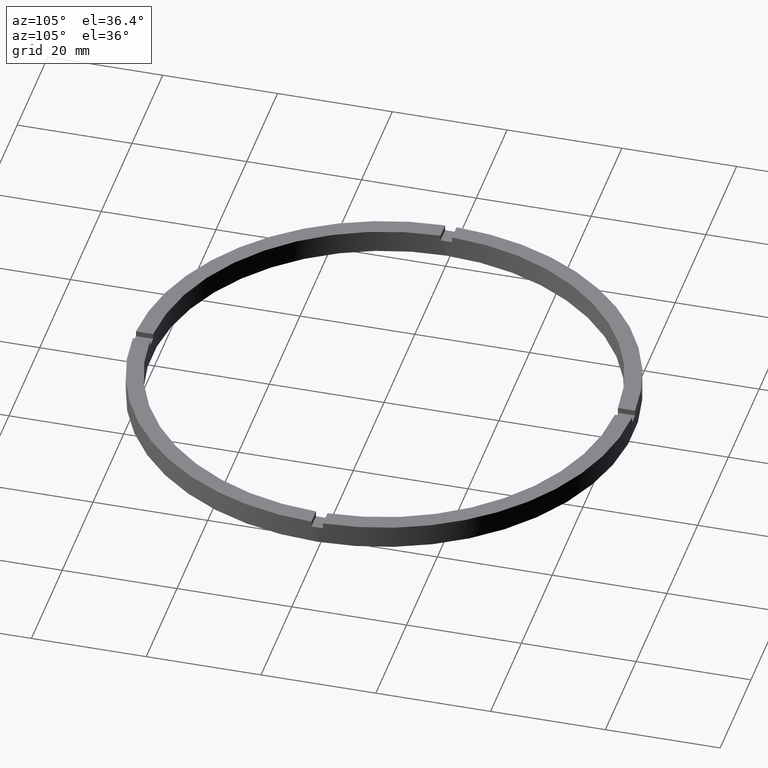
[diagram: clean part render]
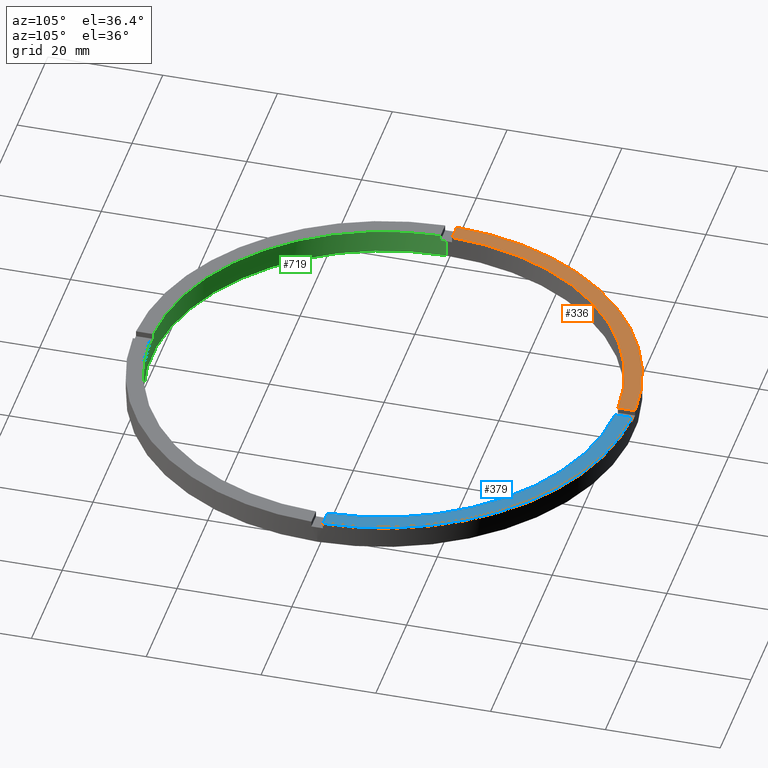
[diagram: same view with three faces highlighted in distinct colors, each labeled with its STEP entity id]
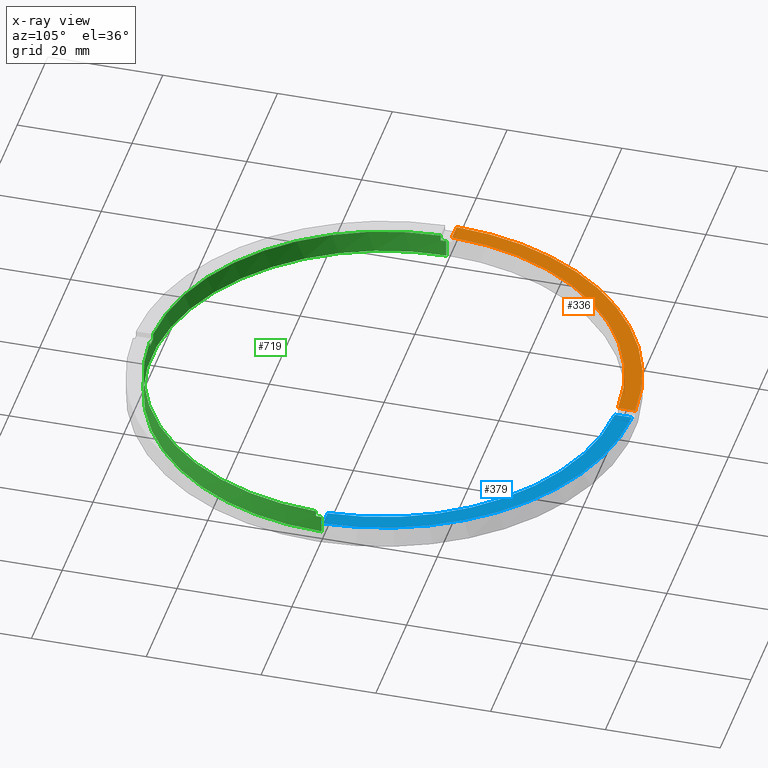
[diagram: x-ray of the same camera — body ghosted, the three highlighted faces saturated]
A machine part, auxiliary view with three faces highlighted in distinct colors.
The next image is the same camera in x-ray (body ghosted, the three faces saturated) — at least one of them is partly hidden behind the body in this view.
Their STEP definitions:

[orange] entity #336 — the highlighted planar face has unit normal (0, 0, 1).
#2 = VERTEX_POINT ( 'NONE', #388 ) ;
#29 = ORIENTED_EDGE ( 'NONE', *, *, #283, .T. ) ;
#80 = VECTOR ( 'NONE', #702, 1000.000000000000000 ) ;
#106 = CARTESIAN_POINT ( 'NONE',  ( -1.000000000000025979, 43.48850422812906658, 4.000000000000000000 ) ) ;
#113 = CARTESIAN_POINT ( 'NONE',  ( -40.48765243873742037, 0.9999999999999711342, 4.000000000000000000 ) ) ;
#118 = DIRECTION ( 'NONE',  ( 1.000000000000000000, 0.000000000000000000, -0.000000000000000000 ) ) ;
#125 = DIRECTION ( 'NONE',  ( 1.000000000000000000, 0.000000000000000000, 0.000000000000000000 ) ) ;
#127 = AXIS2_PLACEMENT_3D ( 'NONE', #779, #289, #118 ) ;
#128 = PLANE ( 'NONE',  #127 ) ;
#132 = AXIS2_PLACEMENT_3D ( 'NONE', #351, #383, #493 ) ;
#144 = EDGE_CURVE ( 'NONE', #394, #494, #592, .T. ) ;
#163 = CARTESIAN_POINT ( 'NONE',  ( 0.000000000000000000, 0.000000000000000000, 4.000000000000000000 ) ) ;
#283 = EDGE_CURVE ( 'NONE', #682, #494, #328, .T. ) ;
#289 = DIRECTION ( 'NONE',  ( 0.000000000000000000, 0.000000000000000000, 1.000000000000000000 ) ) ;
#301 = VECTOR ( 'NONE', #356, 1000.000000000000000 ) ;
#310 = CARTESIAN_POINT ( 'NONE',  ( -33.50000000000018474, 0.9999999999999724665, 4.000000000000000000 ) ) ;
#328 = CIRCLE ( 'NONE', #765, 43.50000000000000000 ) ;
#329 = CIRCLE ( 'NONE', #132, 40.50000000000000000 ) ;
#330 = DIRECTION ( 'NONE',  ( 0.000000000000000000, 0.000000000000000000, 1.000000000000000000 ) ) ;
#336 = ADVANCED_FACE ( 'NONE', ( #337 ), #128, .T. ) ;
#337 = FACE_OUTER_BOUND ( 'NONE', #435, .T. ) ;
#351 = CARTESIAN_POINT ( 'NONE',  ( 0.000000000000000000, 0.000000000000000000, 4.000000000000000000 ) ) ;
#356 = DIRECTION ( 'NONE',  ( -0.000000000000000000, -1.000000000000000000, -0.000000000000000000 ) ) ;
#383 = DIRECTION ( 'NONE',  ( 0.000000000000000000, 0.000000000000000000, 1.000000000000000000 ) ) ;
#388 = CARTESIAN_POINT ( 'NONE',  ( -1.000000000000025979, 40.48765243873741326, 4.000000000000000000 ) ) ;
#394 = VERTEX_POINT ( 'NONE', #113 ) ;
#413 = EDGE_CURVE ( 'NONE', #682, #2, #731, .T. ) ;
#435 = EDGE_LOOP ( 'NONE', ( #755, #29, #436, #483 ) ) ;
#436 = ORIENTED_EDGE ( 'NONE', *, *, #144, .F. ) ;
#444 = CARTESIAN_POINT ( 'NONE',  ( -43.48850422812906658, 0.9999999999999705791, 4.000000000000000000 ) ) ;
#483 = ORIENTED_EDGE ( 'NONE', *, *, #664, .F. ) ;
#493 = DIRECTION ( 'NONE',  ( 1.000000000000000000, 0.000000000000000000, 0.000000000000000000 ) ) ;
#494 = VERTEX_POINT ( 'NONE', #444 ) ;
#592 = LINE ( 'NONE', #310, #80 ) ;
#664 = EDGE_CURVE ( 'NONE', #2, #394, #329, .T. ) ;
#682 = VERTEX_POINT ( 'NONE', #106 ) ;
#702 = DIRECTION ( 'NONE',  ( -1.000000000000000000, -1.951563910473907735E-16, 0.000000000000000000 ) ) ;
#731 = LINE ( 'NONE', #746, #301 ) ;
#746 = CARTESIAN_POINT ( 'NONE',  ( -1.000000000000025979, 33.49999999999999289, 4.000000000000000000 ) ) ;
#755 = ORIENTED_EDGE ( 'NONE', *, *, #413, .F. ) ;
#765 = AXIS2_PLACEMENT_3D ( 'NONE', #163, #330, #125 ) ;
#779 = CARTESIAN_POINT ( 'NONE',  ( 0.000000000000000000, 0.000000000000000000, 4.000000000000000000 ) ) ;

[blue] entity #379 — the highlighted planar face has unit normal (0, 0, 1).
#3 = ORIENTED_EDGE ( 'NONE', *, *, #82, .F. ) ;
#19 = LINE ( 'NONE', #666, #296 ) ;
#63 = VECTOR ( 'NONE', #423, 1000.000000000000000 ) ;
#73 = DIRECTION ( 'NONE',  ( 0.000000000000000000, 0.000000000000000000, 1.000000000000000000 ) ) ;
#75 = DIRECTION ( 'NONE',  ( 0.000000000000000000, 0.000000000000000000, 1.000000000000000000 ) ) ;
#82 = EDGE_CURVE ( 'NONE', #248, #213, #19, .T. ) ;
#87 = CARTESIAN_POINT ( 'NONE',  ( 0.9999999999999740208, 43.48850422812906658, 4.000000000000000000 ) ) ;
#105 = CARTESIAN_POINT ( 'NONE',  ( 0.000000000000000000, 0.000000000000000000, 4.000000000000000000 ) ) ;
#148 = EDGE_LOOP ( 'NONE', ( #521, #259, #3, #513 ) ) ;
#183 = CARTESIAN_POINT ( 'NONE',  ( 0.9999999999999740208, 33.49999999999999289, 4.000000000000000000 ) ) ;
#196 = PLANE ( 'NONE',  #742 ) ;
#213 = VERTEX_POINT ( 'NONE', #517 ) ;
#223 = DIRECTION ( 'NONE',  ( -1.000000000000000000, -6.505213034913025371E-17, -0.000000000000000000 ) ) ;
#248 = VERTEX_POINT ( 'NONE', #693 ) ;
#259 = ORIENTED_EDGE ( 'NONE', *, *, #406, .F. ) ;
#271 = EDGE_CURVE ( 'NONE', #248, #523, #590, .T. ) ;
#296 = VECTOR ( 'NONE', #223, 1000.000000000000000 ) ;
#300 = DIRECTION ( 'NONE',  ( 1.000000000000000000, 0.000000000000000000, -0.000000000000000000 ) ) ;
#305 = CARTESIAN_POINT ( 'NONE',  ( 0.000000000000000000, 0.000000000000000000, 4.000000000000000000 ) ) ;
#343 = VERTEX_POINT ( 'NONE', #537 ) ;
#379 = ADVANCED_FACE ( 'NONE', ( #724 ), #196, .T. ) ;
#406 = EDGE_CURVE ( 'NONE', #213, #343, #464, .T. ) ;
#423 = DIRECTION ( 'NONE',  ( 0.000000000000000000, 1.000000000000000000, 0.000000000000000000 ) ) ;
#464 = CIRCLE ( 'NONE', #631, 40.50000000000000000 ) ;
#466 = CARTESIAN_POINT ( 'NONE',  ( 0.000000000000000000, 0.000000000000000000, 4.000000000000000000 ) ) ;
#471 = DIRECTION ( 'NONE',  ( 1.000000000000000000, 0.000000000000000000, 0.000000000000000000 ) ) ;
#473 = DIRECTION ( 'NONE',  ( 0.000000000000000000, 0.000000000000000000, 1.000000000000000000 ) ) ;
#513 = ORIENTED_EDGE ( 'NONE', *, *, #271, .T. ) ;
#517 = CARTESIAN_POINT ( 'NONE',  ( 40.48765243873742037, 0.9999999999998434586, 4.000000000000000000 ) ) ;
#521 = ORIENTED_EDGE ( 'NONE', *, *, #729, .F. ) ;
#523 = VERTEX_POINT ( 'NONE', #87 ) ;
#537 = CARTESIAN_POINT ( 'NONE',  ( 0.9999999999999740208, 40.48765243873742037, 4.000000000000000000 ) ) ;
#560 = AXIS2_PLACEMENT_3D ( 'NONE', #105, #473, #471 ) ;
#590 = CIRCLE ( 'NONE', #560, 43.50000000000000000 ) ;
#593 = LINE ( 'NONE', #183, #63 ) ;
#609 = DIRECTION ( 'NONE',  ( 1.000000000000000000, 0.000000000000000000, 0.000000000000000000 ) ) ;
#631 = AXIS2_PLACEMENT_3D ( 'NONE', #466, #73, #609 ) ;
#666 = CARTESIAN_POINT ( 'NONE',  ( 33.49999999999998579, 0.9999999999998430145, 4.000000000000000000 ) ) ;
#693 = CARTESIAN_POINT ( 'NONE',  ( 43.48850422812906658, 0.9999999999998436806, 4.000000000000000000 ) ) ;
#724 = FACE_OUTER_BOUND ( 'NONE', #148, .T. ) ;
#729 = EDGE_CURVE ( 'NONE', #343, #523, #593, .T. ) ;
#742 = AXIS2_PLACEMENT_3D ( 'NONE', #305, #75, #300 ) ;

[green] entity #719 — the highlighted cylindrical surface (partial cylindrical patch) has radius 40.5 mm, axis along (-0, -0, -1).
#6 = VERTEX_POINT ( 'NONE', #143 ) ;
#8 = EDGE_CURVE ( 'NONE', #460, #293, #193, .T. ) ;
#13 = CIRCLE ( 'NONE', #350, 40.50000000000000000 ) ;
#16 = ORIENTED_EDGE ( 'NONE', *, *, #672, .F. ) ;
#23 = LINE ( 'NONE', #88, #279 ) ;
#24 = ORIENTED_EDGE ( 'NONE', *, *, #254, .F. ) ;
#30 = LINE ( 'NONE', #151, #547 ) ;
#42 = CIRCLE ( 'NONE', #397, 40.50000000000000000 ) ;
#65 = CARTESIAN_POINT ( 'NONE',  ( -40.50000000000000000, 0.000000000000000000, 4.000000000000000000 ) ) ;
#66 = EDGE_CURVE ( 'NONE', #324, #610, #42, .T. ) ;
#88 = CARTESIAN_POINT ( 'NONE',  ( -1.000000000000158762, -40.48765243873741326, 4.000000000000000000 ) ) ;
#91 = VERTEX_POINT ( 'NONE', #359 ) ;
#96 = AXIS2_PLACEMENT_3D ( 'NONE', #139, #698, #646 ) ;
#98 = DIRECTION ( 'NONE',  ( -0.000000000000000000, -0.000000000000000000, -1.000000000000000000 ) ) ;
#104 = CARTESIAN_POINT ( 'NONE',  ( 0.9999999999998412381, -40.48765243873742037, 4.000000000000000000 ) ) ;
#114 = DIRECTION ( 'NONE',  ( -0.000000000000000000, -0.000000000000000000, -1.000000000000000000 ) ) ;
#115 = CARTESIAN_POINT ( 'NONE',  ( 0.000000000000000000, 0.000000000000000000, 4.000000000000000000 ) ) ;
#117 = AXIS2_PLACEMENT_3D ( 'NONE', #495, #355, #514 ) ;
#122 = DIRECTION ( 'NONE',  ( 0.000000000000000000, 0.000000000000000000, 1.000000000000000000 ) ) ;
#131 = VERTEX_POINT ( 'NONE', #543 ) ;
#136 = EDGE_CURVE ( 'NONE', #324, #155, #23, .T. ) ;
#139 = CARTESIAN_POINT ( 'NONE',  ( 0.000000000000000000, 0.000000000000000000, 4.000000000000000000 ) ) ;
#143 = CARTESIAN_POINT ( 'NONE',  ( 0.9999999999998412381, -40.48765243873742037, 4.000000000000000000 ) ) ;
#151 = CARTESIAN_POINT ( 'NONE',  ( 40.48765243873741326, -1.000000000000156541, 4.000000000000000000 ) ) ;
#155 = VERTEX_POINT ( 'NONE', #372 ) ;
#165 = AXIS2_PLACEMENT_3D ( 'NONE', #203, #288, #620 ) ;
#173 = ORIENTED_EDGE ( 'NONE', *, *, #136, .F. ) ;
#177 = ORIENTED_EDGE ( 'NONE', *, *, #353, .T. ) ;
#179 = VECTOR ( 'NONE', #363, 1000.000000000000000 ) ;
#185 = LINE ( 'NONE', #696, #179 ) ;
#186 = AXIS2_PLACEMENT_3D ( 'NONE', #502, #354, #280 ) ;
#193 = LINE ( 'NONE', #577, #730 ) ;
#203 = CARTESIAN_POINT ( 'NONE',  ( 0.000000000000000000, 0.000000000000000000, 3.000000000000000000 ) ) ;
#230 = DIRECTION ( 'NONE',  ( 1.000000000000000000, 0.000000000000000000, 0.000000000000000000 ) ) ;
#233 = ORIENTED_EDGE ( 'NONE', *, *, #653, .F. ) ;
#242 = ORIENTED_EDGE ( 'NONE', *, *, #712, .T. ) ;
#254 = EDGE_CURVE ( 'NONE', #554, #688, #602, .T. ) ;
#279 = VECTOR ( 'NONE', #122, 1000.000000000000000 ) ;
#280 = DIRECTION ( 'NONE',  ( -1.000000000000000000, 0.000000000000000000, 0.000000000000000000 ) ) ;
#288 = DIRECTION ( 'NONE',  ( 0.000000000000000000, 0.000000000000000000, 1.000000000000000000 ) ) ;
#293 = VERTEX_POINT ( 'NONE', #377 ) ;
#307 = CARTESIAN_POINT ( 'NONE',  ( 40.48765243873741326, -1.000000000000156541, 3.000000000000000000 ) ) ;
#317 = LINE ( 'NONE', #104, #335 ) ;
#318 = VECTOR ( 'NONE', #114, 1000.000000000000000 ) ;
#319 = CYLINDRICAL_SURFACE ( 'NONE', #186, 40.50000000000000000 ) ;
#321 = CIRCLE ( 'NONE', #387, 40.50000000000000000 ) ;
#324 = VERTEX_POINT ( 'NONE', #418 ) ;
#335 = VECTOR ( 'NONE', #98, 1000.000000000000000 ) ;
#339 = EDGE_LOOP ( 'NONE', ( #477, #177, #16, #24, #528, #472, #575, #173, #572, #233, #242, #594 ) ) ;
#350 = AXIS2_PLACEMENT_3D ( 'NONE', #621, #771, #410 ) ;
#353 = EDGE_CURVE ( 'NONE', #775, #91, #185, .T. ) ;
#354 = DIRECTION ( 'NONE',  ( -0.000000000000000000, -0.000000000000000000, -1.000000000000000000 ) ) ;
#355 = DIRECTION ( 'NONE',  ( 0.000000000000000000, 0.000000000000000000, 1.000000000000000000 ) ) ;
#359 = CARTESIAN_POINT ( 'NONE',  ( 40.50000000000000000, 4.959819536546780600E-15, 0.000000000000000000 ) ) ;
#363 = DIRECTION ( 'NONE',  ( -0.000000000000000000, -0.000000000000000000, -1.000000000000000000 ) ) ;
#368 = CARTESIAN_POINT ( 'NONE',  ( 40.50000000000000000, 4.959819536546780600E-15, 3.000000000000000000 ) ) ;
#369 = CARTESIAN_POINT ( 'NONE',  ( 0.000000000000000000, 0.000000000000000000, 3.000000000000000000 ) ) ;
#372 = CARTESIAN_POINT ( 'NONE',  ( -1.000000000000158762, -40.48765243873741326, 4.000000000000000000 ) ) ;
#377 = CARTESIAN_POINT ( 'NONE',  ( -40.48765243873741326, -1.000000000000028866, 3.000000000000000000 ) ) ;
#387 = AXIS2_PLACEMENT_3D ( 'NONE', #115, #643, #392 ) ;
#391 = DIRECTION ( 'NONE',  ( -0.000000000000000000, 0.000000000000000000, 1.000000000000000000 ) ) ;
#392 = DIRECTION ( 'NONE',  ( 1.000000000000000000, 0.000000000000000000, 0.000000000000000000 ) ) ;
#397 = AXIS2_PLACEMENT_3D ( 'NONE', #369, #391, #230 ) ;
#400 = CARTESIAN_POINT ( 'NONE',  ( -40.48765243873741326, -1.000000000000028866, 4.000000000000000000 ) ) ;
#410 = DIRECTION ( 'NONE',  ( 1.000000000000000000, 0.000000000000000000, 0.000000000000000000 ) ) ;
#418 = CARTESIAN_POINT ( 'NONE',  ( -1.000000000000158762, -40.48765243873741326, 3.000000000000000000 ) ) ;
#446 = EDGE_CURVE ( 'NONE', #554, #293, #556, .T. ) ;
#460 = VERTEX_POINT ( 'NONE', #400 ) ;
#472 = ORIENTED_EDGE ( 'NONE', *, *, #8, .F. ) ;
#477 = ORIENTED_EDGE ( 'NONE', *, *, #499, .T. ) ;
#495 = CARTESIAN_POINT ( 'NONE',  ( 0.000000000000000000, 0.000000000000000000, 0.000000000000000000 ) ) ;
#498 = VERTEX_POINT ( 'NONE', #307 ) ;
#499 = EDGE_CURVE ( 'NONE', #498, #775, #13, .T. ) ;
#502 = CARTESIAN_POINT ( 'NONE',  ( 0.000000000000000000, 0.000000000000000000, 4.000000000000000000 ) ) ;
#504 = CARTESIAN_POINT ( 'NONE',  ( 0.9999999999998412381, -40.48765243873742037, 3.000000000000000000 ) ) ;
#514 = DIRECTION ( 'NONE',  ( 1.000000000000000000, 0.000000000000000000, 0.000000000000000000 ) ) ;
#528 = ORIENTED_EDGE ( 'NONE', *, *, #446, .T. ) ;
#543 = CARTESIAN_POINT ( 'NONE',  ( 40.48765243873741326, -1.000000000000156541, 4.000000000000000000 ) ) ;
#547 = VECTOR ( 'NONE', #611, 1000.000000000000000 ) ;
#549 = EDGE_CURVE ( 'NONE', #498, #131, #30, .T. ) ;
#554 = VERTEX_POINT ( 'NONE', #756 ) ;
#556 = CIRCLE ( 'NONE', #165, 40.50000000000000000 ) ;
#572 = ORIENTED_EDGE ( 'NONE', *, *, #66, .T. ) ;
#575 = ORIENTED_EDGE ( 'NONE', *, *, #706, .T. ) ;
#576 = FACE_OUTER_BOUND ( 'NONE', #339, .T. ) ;
#577 = CARTESIAN_POINT ( 'NONE',  ( -40.48765243873741326, -1.000000000000028866, 4.000000000000000000 ) ) ;
#580 = CIRCLE ( 'NONE', #96, 40.50000000000000000 ) ;
#594 = ORIENTED_EDGE ( 'NONE', *, *, #549, .F. ) ;
#599 = CIRCLE ( 'NONE', #117, 40.50000000000000000 ) ;
#602 = LINE ( 'NONE', #65, #318 ) ;
#610 = VERTEX_POINT ( 'NONE', #504 ) ;
#611 = DIRECTION ( 'NONE',  ( 0.000000000000000000, 0.000000000000000000, 1.000000000000000000 ) ) ;
#620 = DIRECTION ( 'NONE',  ( 1.000000000000000000, 0.000000000000000000, 0.000000000000000000 ) ) ;
#621 = CARTESIAN_POINT ( 'NONE',  ( 0.000000000000000000, 0.000000000000000000, 3.000000000000000000 ) ) ;
#635 = DIRECTION ( 'NONE',  ( -0.000000000000000000, -0.000000000000000000, -1.000000000000000000 ) ) ;
#643 = DIRECTION ( 'NONE',  ( 0.000000000000000000, 0.000000000000000000, 1.000000000000000000 ) ) ;
#646 = DIRECTION ( 'NONE',  ( 1.000000000000000000, 0.000000000000000000, 0.000000000000000000 ) ) ;
#653 = EDGE_CURVE ( 'NONE', #6, #610, #317, .T. ) ;
#672 = EDGE_CURVE ( 'NONE', #688, #91, #599, .T. ) ;
#684 = CARTESIAN_POINT ( 'NONE',  ( -40.50000000000000000, 0.000000000000000000, 0.000000000000000000 ) ) ;
#688 = VERTEX_POINT ( 'NONE', #684 ) ;
#696 = CARTESIAN_POINT ( 'NONE',  ( 40.50000000000000000, 4.959819536546780600E-15, 4.000000000000000000 ) ) ;
#698 = DIRECTION ( 'NONE',  ( 0.000000000000000000, 0.000000000000000000, 1.000000000000000000 ) ) ;
#706 = EDGE_CURVE ( 'NONE', #460, #155, #321, .T. ) ;
#712 = EDGE_CURVE ( 'NONE', #6, #131, #580, .T. ) ;
#719 = ADVANCED_FACE ( 'NONE', ( #576 ), #319, .F. ) ;
#730 = VECTOR ( 'NONE', #635, 1000.000000000000000 ) ;
#756 = CARTESIAN_POINT ( 'NONE',  ( -40.50000000000000000, 0.000000000000000000, 3.000000000000000000 ) ) ;
#771 = DIRECTION ( 'NONE',  ( 0.000000000000000000, 0.000000000000000000, 1.000000000000000000 ) ) ;
#775 = VERTEX_POINT ( 'NONE', #368 ) ;